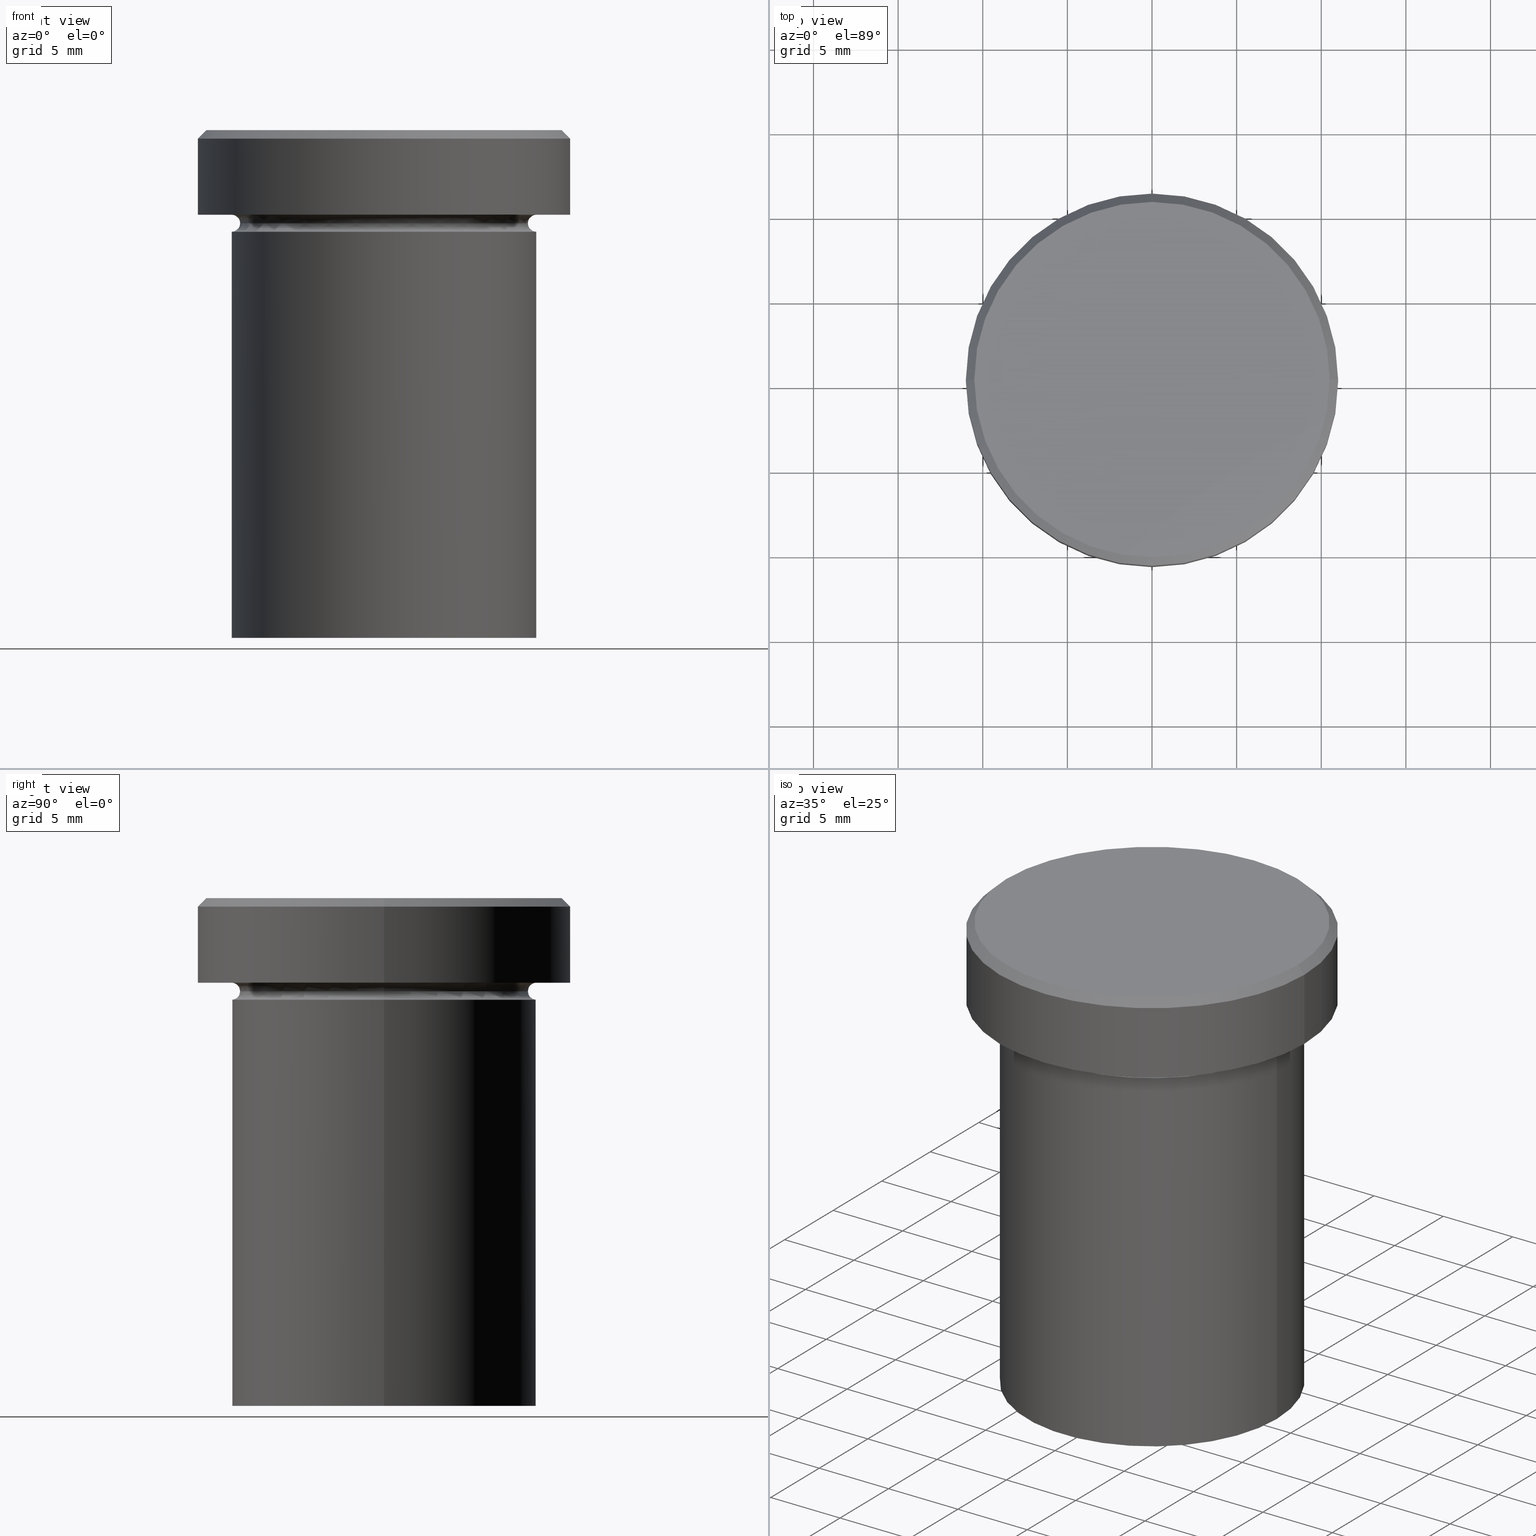
[diagram: canonical four-view strip — front | top / right | iso, engineering-drawing reading convention]
A machine part, canonical four-view strip (front | top / right | iso — engineering-drawing reading convention). The complete STEP part file that produces these views, byte-faithful:
ISO-10303-21;
HEADER;
FILE_DESCRIPTION (( 'STEP AP203' ),
    '1' );
FILE_NAME ('16df.STEP',
    '2024-01-02T22:00:55',
    ( '' ),
    ( '' ),
    'SwSTEP 2.0',
    'SolidWorks 2019',
    '' );
FILE_SCHEMA (( 'CONFIG_CONTROL_DESIGN' ));
ENDSEC;

DATA;
#1 = FACE_OUTER_BOUND ( 'NONE', #31, .T. ) ;
#2 = FACE_BOUND ( 'NONE', #50, .T. ) ;
#3 = PRODUCT_RELATED_PRODUCT_CATEGORY ( 'detail', '', ( #384 ) ) ;
#4 = FACE_OUTER_BOUND ( 'NONE', #209, .T. ) ;
#5 = EDGE_LOOP ( 'NONE', ( #298, #114, #353, #203 ) ) ;
#6 = DIRECTION ( 'NONE',  ( 1.000000000000000000, 0.000000000000000000, 0.000000000000000000 ) ) ;
#7 = CARTESIAN_POINT ( 'NONE',  ( 0.000000000000000000, 11.00000000000000000, -5.000000000000000000 ) ) ;
#8 = AXIS2_PLACEMENT_3D ( 'NONE', #316, #320, #64 ) ;
#9 = DIRECTION ( 'NONE',  ( 0.7071067811865474617, 8.659560562354932858E-17, -0.7071067811865474617 ) ) ;
#10 = AXIS2_PLACEMENT_3D ( 'NONE', #296, #134, #262 ) ;
#11 = DIRECTION ( 'NONE',  ( -1.000000000000000000, 0.000000000000000000, 0.000000000000000000 ) ) ;
#12 = DIRECTION ( 'NONE',  ( -1.000000000000000000, 0.000000000000000000, 0.000000000000000000 ) ) ;
#13 = EDGE_CURVE ( 'NONE', #173, #380, #142, .T. ) ;
#14 = DIRECTION ( 'NONE',  ( 0.000000000000000000, 0.000000000000000000, -1.000000000000000000 ) ) ;
#15 = AXIS2_PLACEMENT_3D ( 'NONE', #238, #233, #207 ) ;
#16 = CARTESIAN_POINT ( 'NONE',  ( 0.000000000000000000, 0.000000000000000000, -5.500000000000000000 ) ) ;
#17 = PERSON_AND_ORGANIZATION ( #381, #159 ) ;
#18 = EDGE_CURVE ( 'NONE', #368, #246, #345, .T. ) ;
#19 = CONICAL_SURFACE ( 'NONE', #66, 10.49999999999999822, 0.7853981633974482790 ) ;
#20 = DIRECTION ( 'NONE',  ( -0.7071067811865474617, 0.000000000000000000, -0.7071067811865474617 ) ) ;
#21 = ORIENTED_EDGE ( 'NONE', *, *, #93, .T. ) ;
#22 = DIRECTION ( 'NONE',  ( 1.000000000000000000, 0.000000000000000000, 0.000000000000000000 ) ) ;
#23 = ORIENTED_EDGE ( 'NONE', *, *, #318, .T. ) ;
#24 = CARTESIAN_POINT ( 'NONE',  ( 0.000000000000000000, 0.000000000000000000, -5.500000000000000000 ) ) ;
#25 = CARTESIAN_POINT ( 'NONE',  ( 9.000000000000000000, 0.000000000000000000, -6.000000000000000000 ) ) ;
#26 = AXIS2_PLACEMENT_3D ( 'NONE', #395, #104, #11 ) ;
#27 = DIRECTION ( 'NONE',  ( 0.000000000000000000, 0.000000000000000000, -1.000000000000000000 ) ) ;
#28 = ORIENTED_EDGE ( 'NONE', *, *, #389, .F. ) ;
#29 = DATE_TIME_ROLE ( 'creation_date' ) ;
#30 = CARTESIAN_POINT ( 'NONE',  ( 0.000000000000000000, 0.000000000000000000, 0.000000000000000000 ) ) ;
#31 = EDGE_LOOP ( 'NONE', ( #109, #182 ) ) ;
#32 = CARTESIAN_POINT ( 'NONE',  ( 0.000000000000000000, 0.000000000000000000, -6.000000000000000000 ) ) ;
#33 = EDGE_LOOP ( 'NONE', ( #304, #362, #283, #153 ) ) ;
#34 = AXIS2_PLACEMENT_3D ( 'NONE', #68, #192, #87 ) ;
#35 = AXIS2_PLACEMENT_3D ( 'NONE', #32, #348, #6 ) ;
#36 = PRODUCT_DEFINITION_FORMATION_WITH_SPECIFIED_SOURCE ( 'LIBOVOLN�', '', #384, .NOT_KNOWN. ) ;
#37 = APPROVAL_STATUS ( 'not_yet_approved' ) ;
#38 = DIRECTION ( 'NONE',  ( 1.000000000000000000, 0.000000000000000000, 0.000000000000000000 ) ) ;
#39 = ORIENTED_EDGE ( 'NONE', *, *, #18, .F. ) ;
#40 = CARTESIAN_POINT ( 'NONE',  ( -9.000000000000000000, 1.102182119232617714E-15, -30.00000000000000000 ) ) ;
#41 = CARTESIAN_POINT ( 'NONE',  ( 0.000000000000000000, 0.000000000000000000, -5.500000000000000000 ) ) ;
#42 = CIRCLE ( 'NONE', #270, 9.000000000000000000 ) ;
#43 = CC_DESIGN_APPROVAL ( #377, ( #36 ) ) ;
#44 = PERSON_AND_ORGANIZATION_ROLE ( 'classification_officer' ) ;
#45 = COORDINATED_UNIVERSAL_TIME_OFFSET ( 1, 0, .AHEAD. ) ;
#46 = ORIENTED_EDGE ( 'NONE', *, *, #93, .F. ) ;
#47 = VECTOR ( 'NONE', #9, 1000.000000000000114 ) ;
#48 = DIRECTION ( 'NONE',  ( -0.000000000000000000, -0.000000000000000000, 1.000000000000000000 ) ) ;
#49 = ADVANCED_FACE ( 'NONE', ( #2, #224 ), #349, .T. ) ;
#50 = EDGE_LOOP ( 'NONE', ( #21, #355 ) ) ;
#51 = TOROIDAL_SURFACE ( 'NONE', #204, 9.000000000000000000, 0.5000000000000000000 ) ;
#52 = DIRECTION ( 'NONE',  ( -0.000000000000000000, -0.000000000000000000, 1.000000000000000000 ) ) ;
#53 = DIRECTION ( 'NONE',  ( 0.000000000000000000, 0.000000000000000000, -1.000000000000000000 ) ) ;
#54 = CARTESIAN_POINT ( 'NONE',  ( -10.49999999999999822, 0.000000000000000000, 0.000000000000000000 ) ) ;
#55 = EDGE_LOOP ( 'NONE', ( #275, #58, #105, #39 ) ) ;
#56 = DESIGN_CONTEXT ( 'detailed design', #273, 'design' ) ;
#57 = DIRECTION ( 'NONE',  ( 0.000000000000000000, 0.000000000000000000, -1.000000000000000000 ) ) ;
#58 = ORIENTED_EDGE ( 'NONE', *, *, #221, .T. ) ;
#59 = AXIS2_PLACEMENT_3D ( 'NONE', #396, #168, #108 ) ;
#60 = LOCAL_TIME ( 23, 0, 55.00000000000000000, #405 ) ;
#61 = DIRECTION ( 'NONE',  ( -1.000000000000000000, 0.000000000000000000, -0.000000000000000000 ) ) ;
#62 = PRODUCT_DEFINITION_SHAPE ( 'NONE', 'NONE',  #69 ) ;
#63 = EDGE_LOOP ( 'NONE', ( #343, #237, #301, #126 ) ) ;
#64 = DIRECTION ( 'NONE',  ( 1.000000000000000000, 0.000000000000000000, 0.000000000000000000 ) ) ;
#65 = DIRECTION ( 'NONE',  ( -1.000000000000000000, 1.224646799147353454E-16, 0.000000000000000000 ) ) ;
#66 = AXIS2_PLACEMENT_3D ( 'NONE', #213, #57, #220 ) ;
#67 = PERSON_AND_ORGANIZATION ( #381, #159 ) ;
#68 = CARTESIAN_POINT ( 'NONE',  ( 0.000000000000000000, 0.000000000000000000, -6.000000000000000000 ) ) ;
#69 = PRODUCT_DEFINITION ( 'NEZN�M�', '', #36, #56 ) ;
#70 = VERTEX_POINT ( 'NONE', #253 ) ;
#71 = DIRECTION ( 'NONE',  ( 1.000000000000000000, 0.000000000000000000, 0.000000000000000000 ) ) ;
#72 = AXIS2_PLACEMENT_3D ( 'NONE', #91, #386, #71 ) ;
#73 = CARTESIAN_POINT ( 'NONE',  ( 0.000000000000000000, 0.000000000000000000, -5.000000000000000000 ) ) ;
#74 = CARTESIAN_POINT ( 'NONE',  ( -10.49999999999999822, 0.000000000000000000, 0.000000000000000000 ) ) ;
#75 = CARTESIAN_POINT ( 'NONE',  ( 0.000000000000000000, 0.000000000000000000, -5.500000000000000000 ) ) ;
#76 = CARTESIAN_POINT ( 'NONE',  ( -11.00000000000000000, 1.347111479062088405E-15, -0.5000000000000004441 ) ) ;
#77 = CIRCLE ( 'NONE', #10, 11.00000000000000000 ) ;
#78 = ADVANCED_FACE ( 'NONE', ( #383 ), #295, .T. ) ;
#79 = DIRECTION ( 'NONE',  ( -0.000000000000000000, -0.000000000000000000, 1.000000000000000000 ) ) ;
#80 = ADVANCED_FACE ( 'NONE', ( #96 ), #90, .F. ) ;
#81 = APPROVAL_DATE_TIME ( #388, #377 ) ;
#82 = AXIS2_PLACEMENT_3D ( 'NONE', #374, #79, #407 ) ;
#83 = APPROVAL_DATE_TIME ( #211, #292 ) ;
#84 = VERTEX_POINT ( 'NONE', #260 ) ;
#85 = ORIENTED_EDGE ( 'NONE', *, *, #178, .T. ) ;
#86 = CYLINDRICAL_SURFACE ( 'NONE', #215, 9.000000000000000000 ) ;
#87 = DIRECTION ( 'NONE',  ( 1.000000000000000000, 0.000000000000000000, 0.000000000000000000 ) ) ;
#88 = ORIENTED_EDGE ( 'NONE', *, *, #322, .T. ) ;
#89 = CLOSED_SHELL ( 'NONE', ( #97, #80, #112, #120, #78, #257, #369, #164, #49, #240, #127, #139, #248 ) ) ;
#90 = TOROIDAL_SURFACE ( 'NONE', #247, 9.000000000000000000, 0.5000000000000000000 ) ;
#91 = CARTESIAN_POINT ( 'NONE',  ( 0.000000000000000000, 0.000000000000000000, -30.00000000000000000 ) ) ;
#92 = ORIENTED_EDGE ( 'NONE', *, *, #276, .F. ) ;
#93 = EDGE_CURVE ( 'NONE', #380, #401, #42, .T. ) ;
#94 = ORIENTED_EDGE ( 'NONE', *, *, #229, .T. ) ;
#95 = DIRECTION ( 'NONE',  ( 1.000000000000000000, 0.000000000000000000, 0.000000000000000000 ) ) ;
#96 = FACE_OUTER_BOUND ( 'NONE', #268, .T. ) ;
#97 = ADVANCED_FACE ( 'NONE', ( #212 ), #161, .T. ) ;
#98 = AXIS2_PLACEMENT_3D ( 'NONE', #230, #282, #95 ) ;
#99 = ORIENTED_EDGE ( 'NONE', *, *, #210, .T. ) ;
#100 = CARTESIAN_POINT ( 'NONE',  ( 0.000000000000000000, 0.000000000000000000, -5.500000000000000000 ) ) ;
#101 = CC_DESIGN_PERSON_AND_ORGANIZATION_ASSIGNMENT ( #165, #206, ( #36 ) ) ;
#102 = CIRCLE ( 'NONE', #341, 11.00000000000000000 ) ;
#103 = EDGE_CURVE ( 'NONE', #84, #175, #197, .T. ) ;
#104 = DIRECTION ( 'NONE',  ( -0.000000000000000000, -0.000000000000000000, 1.000000000000000000 ) ) ;
#105 = ORIENTED_EDGE ( 'NONE', *, *, #322, .F. ) ;
#106 = PERSON_AND_ORGANIZATION_ROLE ( 'creator' ) ;
#107 = EDGE_CURVE ( 'NONE', #250, #246, #406, .T. ) ;
#108 = DIRECTION ( 'NONE',  ( -1.000000000000000000, -1.224646799147353454E-16, 0.000000000000000000 ) ) ;
#109 = ORIENTED_EDGE ( 'NONE', *, *, #302, .F. ) ;
#110 = CIRCLE ( 'NONE', #15, 11.00000000000000000 ) ;
#111 = CYLINDRICAL_SURFACE ( 'NONE', #356, 9.000000000000000000 ) ;
#112 = ADVANCED_FACE ( 'NONE', ( #176 ), #150, .F. ) ;
#113 = DIRECTION ( 'NONE',  ( -1.000000000000000000, 0.000000000000000000, 0.000000000000000000 ) ) ;
#114 = ORIENTED_EDGE ( 'NONE', *, *, #285, .T. ) ;
#115 = CIRCLE ( 'NONE', #34, 9.000000000000000000 ) ;
#116 = APPROVAL_PERSON_ORGANIZATION ( #191, #334, #314 ) ;
#117 = APPLICATION_PROTOCOL_DEFINITION ( 'international standard', 'config_control_design', 1994, #170 ) ;
#118 = DIRECTION ( 'NONE',  ( -1.000000000000000000, 0.000000000000000000, 0.000000000000000000 ) ) ;
#119 = ORIENTED_EDGE ( 'NONE', *, *, #194, .T. ) ;
#120 = ADVANCED_FACE ( 'NONE', ( #315 ), #86, .T. ) ;
#121 = CALENDAR_DATE ( 2024, 2, 1 ) ;
#122 = DIRECTION ( 'NONE',  ( -0.000000000000000000, -1.000000000000000000, -0.000000000000000000 ) ) ;
#123 = COORDINATED_UNIVERSAL_TIME_OFFSET ( 1, 0, .AHEAD. ) ;
#124 = CIRCLE ( 'NONE', #360, 0.5000000000000004441 ) ;
#125 = DIRECTION ( 'NONE',  ( -0.000000000000000000, -0.000000000000000000, 1.000000000000000000 ) ) ;
#126 = ORIENTED_EDGE ( 'NONE', *, *, #229, .F. ) ;
#127 = ADVANCED_FACE ( 'NONE', ( #4 ), #363, .F. ) ;
#128 = PLANE ( 'NONE',  #98 ) ;
#129 = FACE_OUTER_BOUND ( 'NONE', #251, .T. ) ;
#130 = LINE ( 'NONE', #258, #47 ) ;
#131 = AXIS2_PLACEMENT_3D ( 'NONE', #189, #125, #38 ) ;
#132 = DIRECTION ( 'NONE',  ( -0.000000000000000000, -0.000000000000000000, 1.000000000000000000 ) ) ;
#133 = EDGE_CURVE ( 'NONE', #408, #368, #278, .T. ) ;
#134 = DIRECTION ( 'NONE',  ( 0.000000000000000000, 0.000000000000000000, -1.000000000000000000 ) ) ;
#135 = VECTOR ( 'NONE', #242, 1000.000000000000000 ) ;
#136 = EDGE_LOOP ( 'NONE', ( #119, #141, #23, #138 ) ) ;
#137 = AXIS2_PLACEMENT_3D ( 'NONE', #180, #399, #140 ) ;
#138 = ORIENTED_EDGE ( 'NONE', *, *, #409, .F. ) ;
#139 = ADVANCED_FACE ( 'NONE', ( #166 ), #51, .F. ) ;
#140 = DIRECTION ( 'NONE',  ( 1.000000000000000000, 0.000000000000000000, 0.000000000000000000 ) ) ;
#141 = ORIENTED_EDGE ( 'NONE', *, *, #202, .T. ) ;
#142 = CIRCLE ( 'NONE', #339, 0.5000000000000004441 ) ;
#143 = LOCAL_TIME ( 23, 0, 55.00000000000000000, #45 ) ;
#144 = FACE_OUTER_BOUND ( 'NONE', #311, .T. ) ;
#145 = CARTESIAN_POINT ( 'NONE',  ( 11.00000000000000000, 0.000000000000000000, -5.000000000000000000 ) ) ;
#146 = ORIENTED_EDGE ( 'NONE', *, *, #210, .F. ) ;
#147 = COORDINATED_UNIVERSAL_TIME_OFFSET ( 1, 0, .AHEAD. ) ;
#148 = DIRECTION ( 'NONE',  ( -0.000000000000000000, -0.000000000000000000, 1.000000000000000000 ) ) ;
#149 = PLANE ( 'NONE',  #252 ) ;
#150 = TOROIDAL_SURFACE ( 'NONE', #214, 9.000000000000000000, 0.5000000000000000000 ) ;
#151 = APPROVAL_ROLE ( '' ) ;
#152 = DIRECTION ( 'NONE',  ( 0.000000000000000000, -1.000000000000000000, 0.000000000000000000 ) ) ;
#153 = ORIENTED_EDGE ( 'NONE', *, *, #107, .F. ) ;
#154 = APPROVAL_STATUS ( 'not_yet_approved' ) ;
#155 = CARTESIAN_POINT ( 'NONE',  ( 9.000000000000000000, 0.000000000000000000, -30.00000000000000000 ) ) ;
#156 = ORIENTED_EDGE ( 'NONE', *, *, #290, .F. ) ;
#157 = PERSON_AND_ORGANIZATION ( #381, #159 ) ;
#158 = VECTOR ( 'NONE', #225, 1000.000000000000000 ) ;
#159 = ORGANIZATION ( 'NEUR�EN�', 'NEUR�EN�', '' ) ;
#160 = EDGE_CURVE ( 'NONE', #70, #188, #77, .T. ) ;
#161 = CONICAL_SURFACE ( 'NONE', #264, 10.49999999999999822, 0.7853981633974482790 ) ;
#162 = LOCAL_TIME ( 23, 0, 55.00000000000000000, #147 ) ;
#163 = DIRECTION ( 'NONE',  ( 1.000000000000000000, 0.000000000000000000, 0.000000000000000000 ) ) ;
#164 = ADVANCED_FACE ( 'NONE', ( #390 ), #200, .T. ) ;
#165 = PERSON_AND_ORGANIZATION ( #381, #159 ) ;
#166 = FACE_OUTER_BOUND ( 'NONE', #312, .T. ) ;
#167 = CIRCLE ( 'NONE', #26, 9.000000000000000000 ) ;
#168 = DIRECTION ( 'NONE',  ( -1.224646799147353207E-16, 1.000000000000000000, 0.000000000000000000 ) ) ;
#169 = DIRECTION ( 'NONE',  ( -0.000000000000000000, -0.000000000000000000, 1.000000000000000000 ) ) ;
#170 = APPLICATION_CONTEXT ( 'configuration controlled 3d designs of mechanical parts and assemblies' ) ;
#171 = PERSON_AND_ORGANIZATION ( #381, #159 ) ;
#172 = CARTESIAN_POINT ( 'NONE',  ( -11.00000000000000000, 1.347111479062088405E-15, 0.000000000000000000 ) ) ;
#173 = VERTEX_POINT ( 'NONE', #300 ) ;
#174 = CIRCLE ( 'NONE', #8, 9.000000000000000000 ) ;
#175 = VERTEX_POINT ( 'NONE', #74 ) ;
#176 = FACE_OUTER_BOUND ( 'NONE', #33, .T. ) ;
#177 = LINE ( 'NONE', #172, #293 ) ;
#178 = EDGE_CURVE ( 'NONE', #173, #250, #228, .T. ) ;
#179 = ORIENTED_EDGE ( 'NONE', *, *, #103, .T. ) ;
#180 = CARTESIAN_POINT ( 'NONE',  ( 0.000000000000000000, 0.000000000000000000, 0.000000000000000000 ) ) ;
#181 = CARTESIAN_POINT ( 'NONE',  ( 0.000000000000000000, 9.000000000000000000, -30.00000000000000000 ) ) ;
#182 = ORIENTED_EDGE ( 'NONE', *, *, #133, .F. ) ;
#183 = EDGE_CURVE ( 'NONE', #401, #380, #167, .T. ) ;
#184 = UNCERTAINTY_MEASURE_WITH_UNIT (LENGTH_MEASURE( 1.000000000000000082E-05 ), #337, 'distance_accuracy_value', 'NONE');
#185 = AXIS2_PLACEMENT_3D ( 'NONE', #327, #132, #163 ) ;
#186 = CARTESIAN_POINT ( 'NONE',  ( -9.000000000000000000, 1.102182119232617714E-15, -6.000000000000000000 ) ) ;
#187 = DIRECTION ( 'NONE',  ( 0.000000000000000000, 0.000000000000000000, -1.000000000000000000 ) ) ;
#188 = VERTEX_POINT ( 'NONE', #76 ) ;
#189 = CARTESIAN_POINT ( 'NONE',  ( 0.000000000000000000, 0.000000000000000000, -5.000000000000000000 ) ) ;
#190 = AXIS2_PLACEMENT_3D ( 'NONE', #16, #198, #199 ) ;
#191 = PERSON_AND_ORGANIZATION ( #381, #159 ) ;
#192 = DIRECTION ( 'NONE',  ( -0.000000000000000000, -0.000000000000000000, 1.000000000000000000 ) ) ;
#193 = EDGE_CURVE ( 'NONE', #250, #401, #239, .T. ) ;
#194 = EDGE_CURVE ( 'NONE', #271, #335, #110, .T. ) ;
#195 = SECURITY_CLASSIFICATION_LEVEL ( 'unclassified' ) ;
#196 = DIRECTION ( 'NONE',  ( -0.000000000000000000, -0.000000000000000000, 1.000000000000000000 ) ) ;
#197 = CIRCLE ( 'NONE', #234, 10.49999999999999822 ) ;
#198 = DIRECTION ( 'NONE',  ( -0.000000000000000000, -0.000000000000000000, 1.000000000000000000 ) ) ;
#199 = DIRECTION ( 'NONE',  ( 1.000000000000000000, 0.000000000000000000, 0.000000000000000000 ) ) ;
#200 = CYLINDRICAL_SURFACE ( 'NONE', #370, 11.00000000000000000 ) ;
#201 = PERSON_AND_ORGANIZATION_ROLE ( 'creator' ) ;
#202 = EDGE_CURVE ( 'NONE', #335, #188, #177, .T. ) ;
#203 = ORIENTED_EDGE ( 'NONE', *, *, #160, .T. ) ;
#204 = AXIS2_PLACEMENT_3D ( 'NONE', #75, #14, #12 ) ;
#205 = ORIENTED_EDGE ( 'NONE', *, *, #285, .F. ) ;
#206 = PERSON_AND_ORGANIZATION_ROLE ( 'design_supplier' ) ;
#207 = DIRECTION ( 'NONE',  ( 1.000000000000000000, 0.000000000000000000, 0.000000000000000000 ) ) ;
#208 = ORIENTED_EDGE ( 'NONE', *, *, #194, .F. ) ;
#209 = EDGE_LOOP ( 'NONE', ( #156, #92, #404, #88 ) ) ;
#210 = EDGE_CURVE ( 'NONE', #175, #84, #350, .T. ) ;
#211 = DATE_AND_TIME ( #365, #60 ) ;
#212 = FACE_OUTER_BOUND ( 'NONE', #63, .T. ) ;
#213 = CARTESIAN_POINT ( 'NONE',  ( 0.000000000000000000, 0.000000000000000000, 0.000000000000000000 ) ) ;
#214 = AXIS2_PLACEMENT_3D ( 'NONE', #24, #148, #378 ) ;
#215 = AXIS2_PLACEMENT_3D ( 'NONE', #30, #319, #310 ) ;
#216 = LOCAL_TIME ( 23, 0, 55.00000000000000000, #385 ) ;
#217 = VECTOR ( 'NONE', #52, 1000.000000000000000 ) ;
#218 = SHAPE_DEFINITION_REPRESENTATION ( #62, #305 ) ;
#219 =( NAMED_UNIT ( * ) PLANE_ANGLE_UNIT ( ) SI_UNIT ( $, .RADIAN. ) );
#220 = DIRECTION ( 'NONE',  ( -1.000000000000000000, 0.000000000000000000, 0.000000000000000000 ) ) ;
#221 = EDGE_CURVE ( 'NONE', #408, #352, #308, .T. ) ;
#222 = CARTESIAN_POINT ( 'NONE',  ( 8.499999999999998224, 0.000000000000000000, -5.500000000000000000 ) ) ;
#223 = DIRECTION ( 'NONE',  ( 0.000000000000000000, 0.000000000000000000, -1.000000000000000000 ) ) ;
#224 = FACE_OUTER_BOUND ( 'NONE', #397, .T. ) ;
#225 = DIRECTION ( 'NONE',  ( -0.000000000000000000, -0.000000000000000000, 1.000000000000000000 ) ) ;
#226 = ORIENTED_EDGE ( 'NONE', *, *, #276, .T. ) ;
#227 = CARTESIAN_POINT ( 'NONE',  ( 0.000000000000000000, 0.000000000000000000, -0.5000000000000004441 ) ) ;
#228 = CIRCLE ( 'NONE', #190, 8.499999999999998224 ) ;
#229 = EDGE_CURVE ( 'NONE', #175, #188, #400, .T. ) ;
#230 = CARTESIAN_POINT ( 'NONE',  ( 0.000000000000000000, 0.000000000000000000, 0.000000000000000000 ) ) ;
#231 = ORIENTED_EDGE ( 'NONE', *, *, #183, .F. ) ;
#232 = CC_DESIGN_PERSON_AND_ORGANIZATION_ASSIGNMENT ( #157, #201, ( #36 ) ) ;
#233 = DIRECTION ( 'NONE',  ( -0.000000000000000000, -0.000000000000000000, 1.000000000000000000 ) ) ;
#234 = AXIS2_PLACEMENT_3D ( 'NONE', #244, #371, #366 ) ;
#235 = DIRECTION ( 'NONE',  ( 0.000000000000000000, 0.000000000000000000, -1.000000000000000000 ) ) ;
#236 = DIRECTION ( 'NONE',  ( -1.000000000000000000, 0.000000000000000000, 0.000000000000000000 ) ) ;
#237 = ORIENTED_EDGE ( 'NONE', *, *, #359, .T. ) ;
#238 = CARTESIAN_POINT ( 'NONE',  ( 0.000000000000000000, 0.000000000000000000, -5.000000000000000000 ) ) ;
#239 = CIRCLE ( 'NONE', #59, 0.5000000000000004441 ) ;
#240 = ADVANCED_FACE ( 'NONE', ( #144 ), #111, .T. ) ;
#241 = ORIENTED_EDGE ( 'NONE', *, *, #160, .F. ) ;
#242 = DIRECTION ( 'NONE',  ( -0.000000000000000000, -0.000000000000000000, 1.000000000000000000 ) ) ;
#243 = APPROVAL_STATUS ( 'not_yet_approved' ) ;
#244 = CARTESIAN_POINT ( 'NONE',  ( 0.000000000000000000, 0.000000000000000000, 0.000000000000000000 ) ) ;
#245 = CARTESIAN_POINT ( 'NONE',  ( -9.000000000000000000, 1.102182119232617714E-15, 0.000000000000000000 ) ) ;
#246 = VERTEX_POINT ( 'NONE', #25 ) ;
#247 = AXIS2_PLACEMENT_3D ( 'NONE', #100, #235, #236 ) ;
#248 = ADVANCED_FACE ( 'NONE', ( #379 ), #19, .T. ) ;
#249 = DATE_AND_TIME ( #274, #162 ) ;
#250 = VERTEX_POINT ( 'NONE', #222 ) ;
#251 = EDGE_LOOP ( 'NONE', ( #99, #179 ) ) ;
#252 = AXIS2_PLACEMENT_3D ( 'NONE', #181, #27, #340 ) ;
#253 = CARTESIAN_POINT ( 'NONE',  ( 11.00000000000000000, 0.000000000000000000, -0.5000000000000004441 ) ) ;
#254 = CC_DESIGN_DATE_AND_TIME_ASSIGNMENT ( #344, #29, ( #69 ) ) ;
#255 = CARTESIAN_POINT ( 'NONE',  ( -9.000000000000000000, 1.102182119232617714E-15, -5.500000000000000000 ) ) ;
#256 = DIRECTION ( 'NONE',  ( 1.000000000000000000, 0.000000000000000000, 0.000000000000000000 ) ) ;
#257 = ADVANCED_FACE ( 'NONE', ( #1 ), #149, .T. ) ;
#258 = CARTESIAN_POINT ( 'NONE',  ( 10.49999999999999822, 1.285879139104720633E-15, 0.000000000000000000 ) ) ;
#259 = CALENDAR_DATE ( 2024, 2, 1 ) ;
#260 = CARTESIAN_POINT ( 'NONE',  ( 10.49999999999999822, 1.316495309083404420E-15, 0.000000000000000000 ) ) ;
#261 = CC_DESIGN_PERSON_AND_ORGANIZATION_ASSIGNMENT ( #329, #44, ( #265 ) ) ;
#262 = DIRECTION ( 'NONE',  ( 1.000000000000000000, 0.000000000000000000, 0.000000000000000000 ) ) ;
#263 = DIRECTION ( 'NONE',  ( -0.000000000000000000, -0.000000000000000000, 1.000000000000000000 ) ) ;
#264 = AXIS2_PLACEMENT_3D ( 'NONE', #307, #347, #113 ) ;
#265 = SECURITY_CLASSIFICATION ( '', '', #195 ) ;
#266 = ORIENTED_EDGE ( 'NONE', *, *, #359, .F. ) ;
#267 = ORIENTED_EDGE ( 'NONE', *, *, #133, .T. ) ;
#268 = EDGE_LOOP ( 'NONE', ( #85, #321, #46, #286 ) ) ;
#269 = MECHANICAL_CONTEXT ( 'NONE', #170, 'mechanical' ) ;
#270 = AXIS2_PLACEMENT_3D ( 'NONE', #73, #169, #118 ) ;
#271 = VERTEX_POINT ( 'NONE', #145 ) ;
#272 = MANIFOLD_SOLID_BREP ( 'Zkosen�1', #89 ) ;
#273 = APPLICATION_CONTEXT ( 'configuration controlled 3d designs of mechanical parts and assemblies' ) ;
#274 = CALENDAR_DATE ( 2024, 2, 1 ) ;
#275 = ORIENTED_EDGE ( 'NONE', *, *, #302, .T. ) ;
#276 = EDGE_CURVE ( 'NONE', #250, #173, #299, .T. ) ;
#277 = ORIENTED_EDGE ( 'NONE', *, *, #18, .T. ) ;
#278 = CIRCLE ( 'NONE', #72, 9.000000000000000000 ) ;
#279 = APPROVAL_PERSON_ORGANIZATION ( #280, #377, #332 ) ;
#280 = PERSON_AND_ORGANIZATION ( #381, #159 ) ;
#281 = CARTESIAN_POINT ( 'NONE',  ( 9.000000000000000000, 0.000000000000000000, 0.000000000000000000 ) ) ;
#282 = DIRECTION ( 'NONE',  ( 0.000000000000000000, -0.000000000000000000, 1.000000000000000000 ) ) ;
#283 = ORIENTED_EDGE ( 'NONE', *, *, #389, .T. ) ;
#284 = APPLICATION_PROTOCOL_DEFINITION ( 'international standard', 'config_control_design', 1994, #273 ) ;
#285 = EDGE_CURVE ( 'NONE', #335, #271, #313, .T. ) ;
#286 = ORIENTED_EDGE ( 'NONE', *, *, #13, .F. ) ;
#287 = CALENDAR_DATE ( 2024, 2, 1 ) ;
#288 = PERSON_AND_ORGANIZATION_ROLE ( 'design_owner' ) ;
#289 = DIRECTION ( 'NONE',  ( 1.224646799147353207E-16, 1.000000000000000000, 0.000000000000000000 ) ) ;
#290 = EDGE_CURVE ( 'NONE', #173, #352, #124, .T. ) ;
#291 = LINE ( 'NONE', #338, #217 ) ;
#292 = APPROVAL ( #243, 'NEUR�EN�' ) ;
#293 = VECTOR ( 'NONE', #402, 1000.000000000000000 ) ;
#294 =( GEOMETRIC_REPRESENTATION_CONTEXT ( 3 ) GLOBAL_UNCERTAINTY_ASSIGNED_CONTEXT ( ( #184 ) ) GLOBAL_UNIT_ASSIGNED_CONTEXT ( ( #337, #219, #309 ) ) REPRESENTATION_CONTEXT ( 'NONE', 'WORKASPACE' ) );
#295 = CYLINDRICAL_SURFACE ( 'NONE', #185, 11.00000000000000000 ) ;
#296 = CARTESIAN_POINT ( 'NONE',  ( 0.000000000000000000, 0.000000000000000000, -0.5000000000000004441 ) ) ;
#297 = CC_DESIGN_DATE_AND_TIME_ASSIGNMENT ( #249, #346, ( #265 ) ) ;
#298 = ORIENTED_EDGE ( 'NONE', *, *, #202, .F. ) ;
#299 = CIRCLE ( 'NONE', #324, 8.499999999999998224 ) ;
#300 = CARTESIAN_POINT ( 'NONE',  ( -8.499999999999998224, 1.071565949253933927E-15, -5.500000000000000000 ) ) ;
#301 = ORIENTED_EDGE ( 'NONE', *, *, #318, .F. ) ;
#302 = EDGE_CURVE ( 'NONE', #368, #408, #174, .T. ) ;
#303 = CARTESIAN_POINT ( 'NONE',  ( 0.000000000000000000, 0.000000000000000000, -5.500000000000000000 ) ) ;
#304 = ORIENTED_EDGE ( 'NONE', *, *, #178, .F. ) ;
#305 = ADVANCED_BREP_SHAPE_REPRESENTATION ( '16df', ( #272, #137 ), #294 ) ;
#306 = AXIS2_PLACEMENT_3D ( 'NONE', #41, #196, #326 ) ;
#307 = CARTESIAN_POINT ( 'NONE',  ( 0.000000000000000000, 0.000000000000000000, 0.000000000000000000 ) ) ;
#308 = LINE ( 'NONE', #245, #135 ) ;
#309 =( NAMED_UNIT ( * ) SI_UNIT ( $, .STERADIAN. ) SOLID_ANGLE_UNIT ( ) );
#310 = DIRECTION ( 'NONE',  ( 1.000000000000000000, 0.000000000000000000, 0.000000000000000000 ) ) ;
#311 = EDGE_LOOP ( 'NONE', ( #373, #267, #277, #28 ) ) ;
#312 = EDGE_LOOP ( 'NONE', ( #317, #226, #336, #231 ) ) ;
#313 = CIRCLE ( 'NONE', #131, 11.00000000000000000 ) ;
#314 = APPROVAL_ROLE ( '' ) ;
#315 = FACE_OUTER_BOUND ( 'NONE', #55, .T. ) ;
#316 = CARTESIAN_POINT ( 'NONE',  ( 0.000000000000000000, 0.000000000000000000, -30.00000000000000000 ) ) ;
#317 = ORIENTED_EDGE ( 'NONE', *, *, #193, .F. ) ;
#318 = EDGE_CURVE ( 'NONE', #188, #70, #102, .T. ) ;
#319 = DIRECTION ( 'NONE',  ( -0.000000000000000000, -0.000000000000000000, 1.000000000000000000 ) ) ;
#320 = DIRECTION ( 'NONE',  ( -0.000000000000000000, -0.000000000000000000, 1.000000000000000000 ) ) ;
#321 = ORIENTED_EDGE ( 'NONE', *, *, #193, .T. ) ;
#322 = EDGE_CURVE ( 'NONE', #246, #352, #392, .T. ) ;
#323 = CARTESIAN_POINT ( 'NONE',  ( -11.00000000000000000, 1.347111479062088405E-15, -5.000000000000000000 ) ) ;
#324 = AXIS2_PLACEMENT_3D ( 'NONE', #303, #48, #256 ) ;
#325 = CARTESIAN_POINT ( 'NONE',  ( 9.000000000000000000, 1.102182119232617714E-15, -4.999999999999999112 ) ) ;
#326 = DIRECTION ( 'NONE',  ( 1.000000000000000000, 0.000000000000000000, 0.000000000000000000 ) ) ;
#327 = CARTESIAN_POINT ( 'NONE',  ( 0.000000000000000000, 0.000000000000000000, 0.000000000000000000 ) ) ;
#328 = APPROVAL_PERSON_ORGANIZATION ( #17, #292, #151 ) ;
#329 = PERSON_AND_ORGANIZATION ( #381, #159 ) ;
#330 = CC_DESIGN_PERSON_AND_ORGANIZATION_ASSIGNMENT ( #67, #106, ( #69 ) ) ;
#331 = CARTESIAN_POINT ( 'NONE',  ( 0.000000000000000000, 0.000000000000000000, 0.000000000000000000 ) ) ;
#332 = APPROVAL_ROLE ( '' ) ;
#333 = AXIS2_PLACEMENT_3D ( 'NONE', #342, #152, #53 ) ;
#334 = APPROVAL ( #37, 'NEUR�EN�' ) ;
#335 = VERTEX_POINT ( 'NONE', #323 ) ;
#336 = ORIENTED_EDGE ( 'NONE', *, *, #13, .T. ) ;
#337 =( LENGTH_UNIT ( ) NAMED_UNIT ( * ) SI_UNIT ( .MILLI., .METRE. ) );
#338 = CARTESIAN_POINT ( 'NONE',  ( 11.00000000000000000, 0.000000000000000000, 0.000000000000000000 ) ) ;
#339 = AXIS2_PLACEMENT_3D ( 'NONE', #375, #122, #223 ) ;
#340 = DIRECTION ( 'NONE',  ( -1.000000000000000000, 0.000000000000000000, -0.000000000000000000 ) ) ;
#341 = AXIS2_PLACEMENT_3D ( 'NONE', #227, #354, #387 ) ;
#342 = CARTESIAN_POINT ( 'NONE',  ( 9.000000000000000000, 0.000000000000000000, -5.500000000000000000 ) ) ;
#343 = ORIENTED_EDGE ( 'NONE', *, *, #103, .F. ) ;
#344 = DATE_AND_TIME ( #287, #393 ) ;
#345 = LINE ( 'NONE', #281, #158 ) ;
#346 = DATE_TIME_ROLE ( 'classification_date' ) ;
#347 = DIRECTION ( 'NONE',  ( 0.000000000000000000, 0.000000000000000000, -1.000000000000000000 ) ) ;
#348 = DIRECTION ( 'NONE',  ( -0.000000000000000000, -0.000000000000000000, 1.000000000000000000 ) ) ;
#349 = PLANE ( 'NONE',  #391 ) ;
#350 = CIRCLE ( 'NONE', #82, 10.49999999999999822 ) ;
#351 = CC_DESIGN_APPROVAL ( #334, ( #69 ) ) ;
#352 = VERTEX_POINT ( 'NONE', #186 ) ;
#353 = ORIENTED_EDGE ( 'NONE', *, *, #409, .T. ) ;
#354 = DIRECTION ( 'NONE',  ( 0.000000000000000000, 0.000000000000000000, -1.000000000000000000 ) ) ;
#355 = ORIENTED_EDGE ( 'NONE', *, *, #183, .T. ) ;
#356 = AXIS2_PLACEMENT_3D ( 'NONE', #367, #372, #22 ) ;
#357 = DATE_AND_TIME ( #121, #216 ) ;
#358 = CARTESIAN_POINT ( 'NONE',  ( -9.000000000000000000, 0.000000000000000000, -4.999999999999999112 ) ) ;
#359 = EDGE_CURVE ( 'NONE', #84, #70, #130, .T. ) ;
#360 = AXIS2_PLACEMENT_3D ( 'NONE', #255, #289, #65 ) ;
#361 = CC_DESIGN_SECURITY_CLASSIFICATION ( #265, ( #36 ) ) ;
#362 = ORIENTED_EDGE ( 'NONE', *, *, #290, .T. ) ;
#363 = TOROIDAL_SURFACE ( 'NONE', #306, 9.000000000000000000, 0.5000000000000000000 ) ;
#364 = EDGE_LOOP ( 'NONE', ( #266, #146, #94, #241 ) ) ;
#365 = CALENDAR_DATE ( 2024, 2, 1 ) ;
#366 = DIRECTION ( 'NONE',  ( 1.000000000000000000, 0.000000000000000000, 0.000000000000000000 ) ) ;
#367 = CARTESIAN_POINT ( 'NONE',  ( 0.000000000000000000, 0.000000000000000000, 0.000000000000000000 ) ) ;
#368 = VERTEX_POINT ( 'NONE', #155 ) ;
#369 = ADVANCED_FACE ( 'NONE', ( #129 ), #128, .T. ) ;
#370 = AXIS2_PLACEMENT_3D ( 'NONE', #331, #263, #394 ) ;
#371 = DIRECTION ( 'NONE',  ( -0.000000000000000000, -0.000000000000000000, 1.000000000000000000 ) ) ;
#372 = DIRECTION ( 'NONE',  ( -0.000000000000000000, -0.000000000000000000, 1.000000000000000000 ) ) ;
#373 = ORIENTED_EDGE ( 'NONE', *, *, #221, .F. ) ;
#374 = CARTESIAN_POINT ( 'NONE',  ( 0.000000000000000000, 0.000000000000000000, 0.000000000000000000 ) ) ;
#375 = CARTESIAN_POINT ( 'NONE',  ( -9.000000000000000000, 0.000000000000000000, -5.500000000000000000 ) ) ;
#376 = APPROVAL_DATE_TIME ( #357, #334 ) ;
#377 = APPROVAL ( #154, 'NEUR�EN�' ) ;
#378 = DIRECTION ( 'NONE',  ( 1.000000000000000000, 0.000000000000000000, 0.000000000000000000 ) ) ;
#379 = FACE_OUTER_BOUND ( 'NONE', #364, .T. ) ;
#380 = VERTEX_POINT ( 'NONE', #358 ) ;
#381 = PERSON ( 'NEUR�EN�', 'NEUR�EN�', 'NEUR�EN�', ('NEUR�EN�'), ('NEUR�EN�'), ('NEUR�EN�') ) ;
#382 = CC_DESIGN_APPROVAL ( #292, ( #265 ) ) ;
#383 = FACE_OUTER_BOUND ( 'NONE', #136, .T. ) ;
#384 = PRODUCT ( '16df', '16df', '', ( #269 ) ) ;
#385 = COORDINATED_UNIVERSAL_TIME_OFFSET ( 1, 0, .AHEAD. ) ;
#386 = DIRECTION ( 'NONE',  ( -0.000000000000000000, -0.000000000000000000, 1.000000000000000000 ) ) ;
#387 = DIRECTION ( 'NONE',  ( 1.000000000000000000, 0.000000000000000000, 0.000000000000000000 ) ) ;
#388 = DATE_AND_TIME ( #259, #143 ) ;
#389 = EDGE_CURVE ( 'NONE', #352, #246, #115, .T. ) ;
#390 = FACE_OUTER_BOUND ( 'NONE', #5, .T. ) ;
#391 = AXIS2_PLACEMENT_3D ( 'NONE', #7, #187, #61 ) ;
#392 = CIRCLE ( 'NONE', #35, 9.000000000000000000 ) ;
#393 = LOCAL_TIME ( 23, 0, 55.00000000000000000, #123 ) ;
#394 = DIRECTION ( 'NONE',  ( 1.000000000000000000, 0.000000000000000000, 0.000000000000000000 ) ) ;
#395 = CARTESIAN_POINT ( 'NONE',  ( 0.000000000000000000, 0.000000000000000000, -5.000000000000000000 ) ) ;
#396 = CARTESIAN_POINT ( 'NONE',  ( 9.000000000000000000, 1.102182119232617714E-15, -5.500000000000000000 ) ) ;
#397 = EDGE_LOOP ( 'NONE', ( #208, #205 ) ) ;
#398 = VECTOR ( 'NONE', #20, 1000.000000000000114 ) ;
#399 = DIRECTION ( 'NONE',  ( 0.000000000000000000, 0.000000000000000000, 1.000000000000000000 ) ) ;
#400 = LINE ( 'NONE', #54, #398 ) ;
#401 = VERTEX_POINT ( 'NONE', #325 ) ;
#402 = DIRECTION ( 'NONE',  ( -0.000000000000000000, -0.000000000000000000, 1.000000000000000000 ) ) ;
#403 = CC_DESIGN_PERSON_AND_ORGANIZATION_ASSIGNMENT ( #171, #288, ( #384 ) ) ;
#404 = ORIENTED_EDGE ( 'NONE', *, *, #107, .T. ) ;
#405 = COORDINATED_UNIVERSAL_TIME_OFFSET ( 1, 0, .AHEAD. ) ;
#406 = CIRCLE ( 'NONE', #333, 0.5000000000000004441 ) ;
#407 = DIRECTION ( 'NONE',  ( 1.000000000000000000, 0.000000000000000000, 0.000000000000000000 ) ) ;
#408 = VERTEX_POINT ( 'NONE', #40 ) ;
#409 = EDGE_CURVE ( 'NONE', #271, #70, #291, .T. ) ;
ENDSEC;
END-ISO-10303-21;
